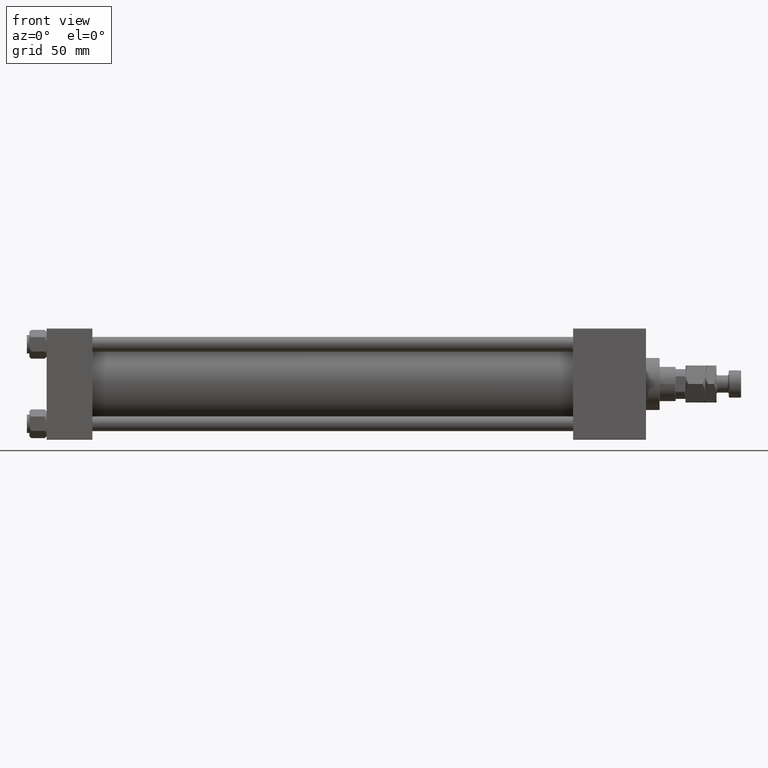
[diagram: clean part render]
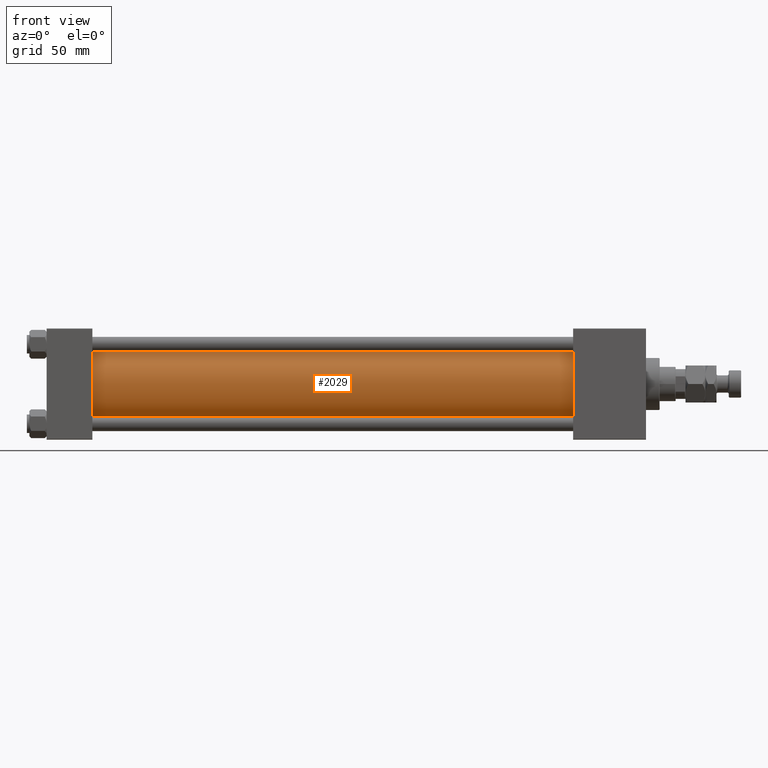
[diagram: same view with one face highlighted and labeled with its STEP entity id]
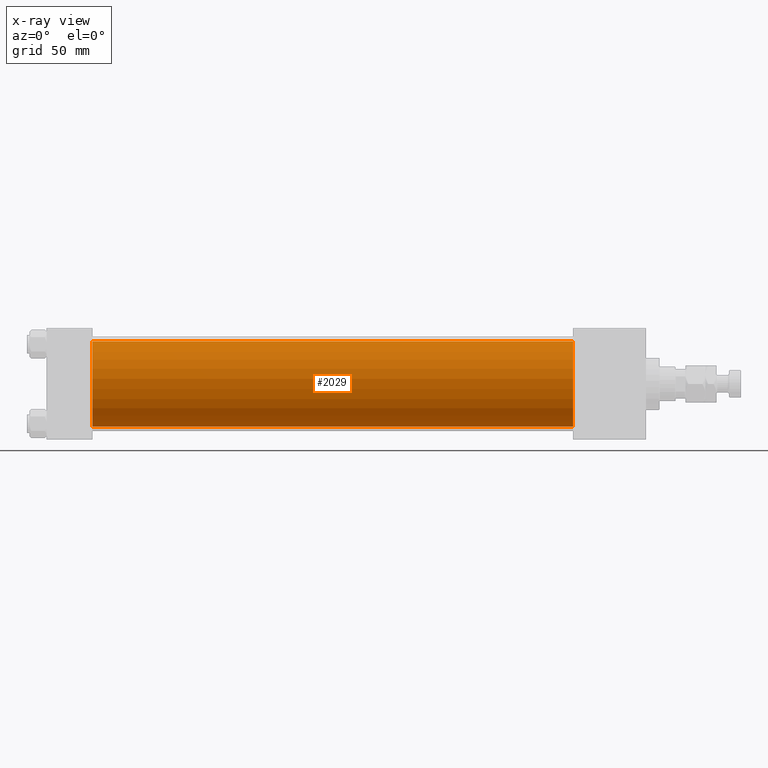
[diagram: x-ray of the same camera — body ghosted, the highlighted face saturated]
A machine part, front view. The second image highlights one B-rep face of the part: STEP entity #2029.
The next image is the same camera in x-ray: the body ghosted, the highlighted face saturated — about 0% of this face is hidden behind the body in this view.
In plain terms, the highlighted cylindrical surface (partial cylindrical patch) has radius 34.5 mm, axis along (-1, -0, -0).
Its self-contained STEP definition (entity closure, byte-faithful):
#2029 = ADVANCED_FACE ( 'NONE', ( #9267 ), #5318, .T. ) ;
#3298 = EDGE_CURVE ( 'NONE', #35755, #23517, #41859, .T. ) ;
#4126 = ORIENTED_EDGE ( 'NONE', *, *, #8481, .T. ) ;
#5318 = CYLINDRICAL_SURFACE ( 'NONE', #28387, 34.50000000000000000 ) ;
#5768 = CARTESIAN_POINT ( 'NONE',  ( 426.0000000000000000, 1.622946243093158675E-15, -34.50000000000000000 ) ) ;
#6282 = CARTESIAN_POINT ( 'NONE',  ( 426.0000000000000000, -2.602085213965210642E-15, 0.000000000000000000 ) ) ;
#8481 = EDGE_CURVE ( 'NONE', #35755, #49155, #11571, .T. ) ;
#8749 = CARTESIAN_POINT ( 'NONE',  ( 36.99999999999997868, 1.622946243093158675E-15, -34.50000000000000000 ) ) ;
#8964 = AXIS2_PLACEMENT_3D ( 'NONE', #30996, #11501, #34693 ) ;
#9267 = FACE_OUTER_BOUND ( 'NONE', #48195, .T. ) ;
#9810 = VECTOR ( 'NONE', #30104, 1000.000000000000000 ) ;
#11501 = DIRECTION ( 'NONE',  ( 1.000000000000000000, -0.000000000000000000, 0.000000000000000000 ) ) ;
#11571 = LINE ( 'NONE', #43963, #47913 ) ;
#13062 = CARTESIAN_POINT ( 'NONE',  ( 36.99999999999997868, -2.602085213965210642E-15, 34.50000000000000000 ) ) ;
#14021 = CARTESIAN_POINT ( 'NONE',  ( 426.0000000000000000, 1.622946243093158675E-15, -34.50000000000000000 ) ) ;
#14416 = DIRECTION ( 'NONE',  ( 0.000000000000000000, 0.000000000000000000, -1.000000000000000000 ) ) ;
#14866 = ORIENTED_EDGE ( 'NONE', *, *, #16630, .T. ) ;
#15588 = CIRCLE ( 'NONE', #8964, 34.50000000000000000 ) ;
#15667 = ORIENTED_EDGE ( 'NONE', *, *, #52049, .F. ) ;
#16630 = EDGE_CURVE ( 'NONE', #49155, #43576, #15588, .T. ) ;
#22586 = DIRECTION ( 'NONE',  ( 1.000000000000000000, 0.000000000000000000, 0.000000000000000000 ) ) ;
#23517 = VERTEX_POINT ( 'NONE', #5768 ) ;
#28387 = AXIS2_PLACEMENT_3D ( 'NONE', #46337, #42657, #38969 ) ;
#30104 = DIRECTION ( 'NONE',  ( -1.000000000000000000, -0.000000000000000000, -0.000000000000000000 ) ) ;
#30996 = CARTESIAN_POINT ( 'NONE',  ( 36.99999999999997868, -2.602085213965210642E-15, 0.000000000000000000 ) ) ;
#34693 = DIRECTION ( 'NONE',  ( 0.000000000000000000, 0.000000000000000000, 1.000000000000000000 ) ) ;
#35755 = VERTEX_POINT ( 'NONE', #42499 ) ;
#38969 = DIRECTION ( 'NONE',  ( 0.000000000000000000, 0.000000000000000000, 1.000000000000000000 ) ) ;
#41859 = CIRCLE ( 'NONE', #50228, 34.50000000000000000 ) ;
#42499 = CARTESIAN_POINT ( 'NONE',  ( 426.0000000000000000, -2.602085213965210642E-15, 34.50000000000000000 ) ) ;
#42657 = DIRECTION ( 'NONE',  ( -1.000000000000000000, -0.000000000000000000, -0.000000000000000000 ) ) ;
#43576 = VERTEX_POINT ( 'NONE', #8749 ) ;
#43695 = DIRECTION ( 'NONE',  ( -1.000000000000000000, -0.000000000000000000, -0.000000000000000000 ) ) ;
#43963 = CARTESIAN_POINT ( 'NONE',  ( 426.0000000000000000, -2.602085213965210642E-15, 34.50000000000000000 ) ) ;
#46337 = CARTESIAN_POINT ( 'NONE',  ( 426.0000000000000000, -2.602085213965210642E-15, 0.000000000000000000 ) ) ;
#47913 = VECTOR ( 'NONE', #43695, 1000.000000000000000 ) ;
#48195 = EDGE_LOOP ( 'NONE', ( #15667, #51427, #4126, #14866 ) ) ;
#49155 = VERTEX_POINT ( 'NONE', #13062 ) ;
#50228 = AXIS2_PLACEMENT_3D ( 'NONE', #6282, #22586, #14416 ) ;
#50888 = LINE ( 'NONE', #14021, #9810 ) ;
#51427 = ORIENTED_EDGE ( 'NONE', *, *, #3298, .F. ) ;
#52049 = EDGE_CURVE ( 'NONE', #23517, #43576, #50888, .T. ) ;